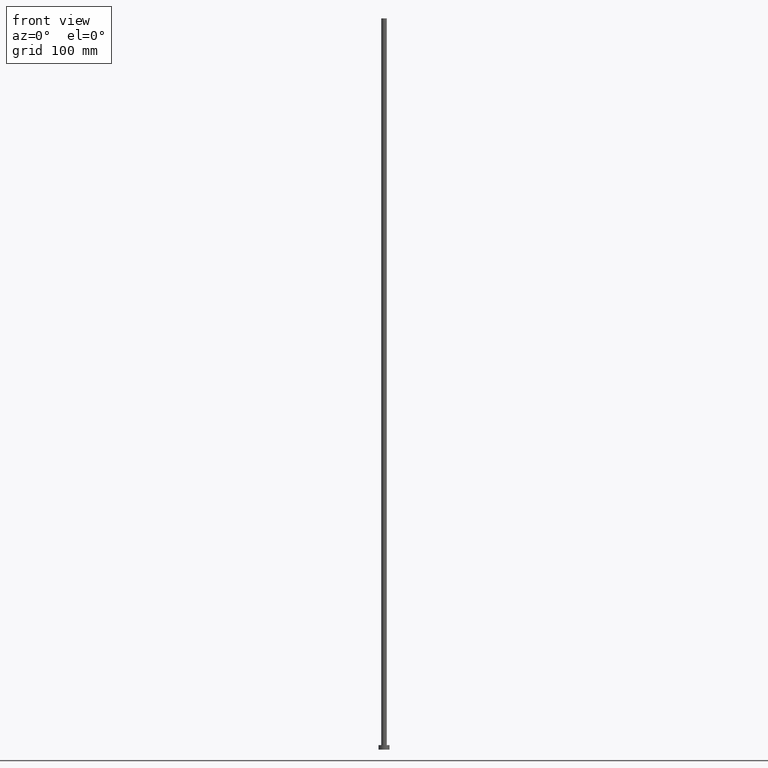
[diagram: clean part render]
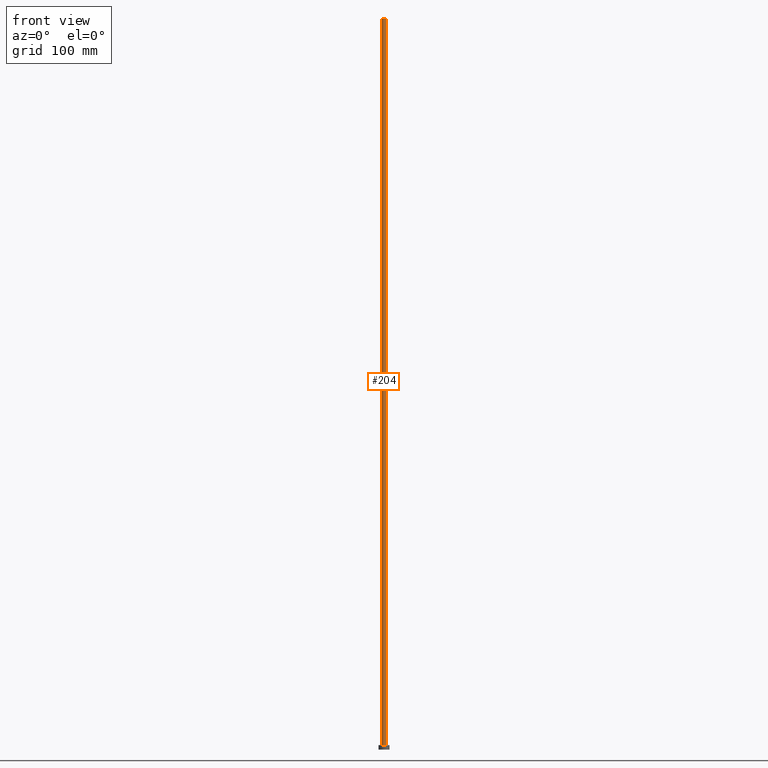
[diagram: same view with one face highlighted and labeled with its STEP entity id]
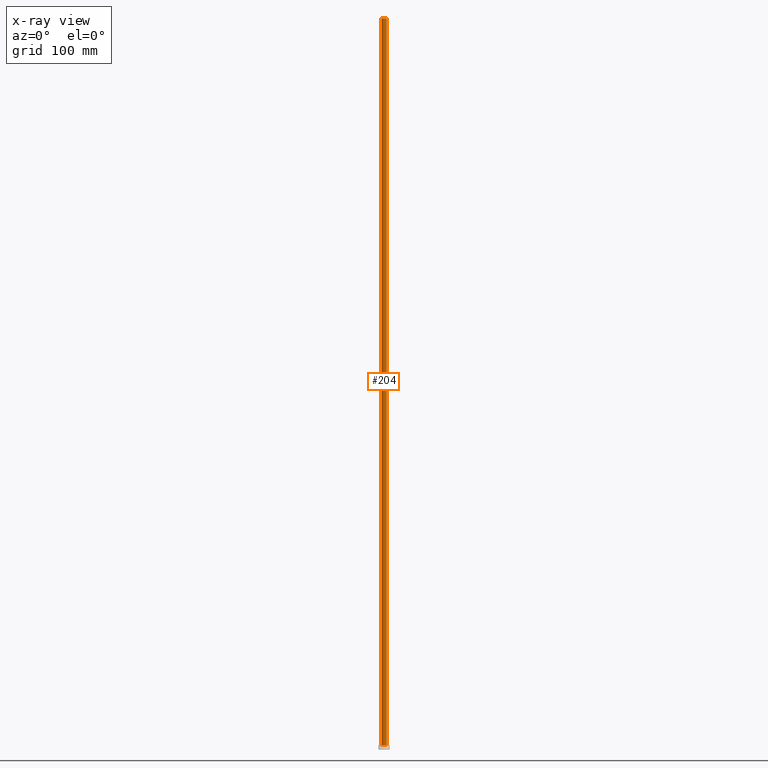
[diagram: x-ray of the same camera — body ghosted, the highlighted face saturated]
A machine part, front view. The second image highlights one B-rep face of the part: STEP entity #204.
The next image is the same camera in x-ray: the body ghosted, the highlighted face saturated — about 0% of this face is hidden behind the body in this view.
In plain terms, the highlighted cylindrical surface (edge-blend (fillet) strip) has radius 3 mm, axis along (-0, -0, -1).
Its self-contained STEP definition (entity closure, byte-faithful):
#2 = DIRECTION ( 'NONE',  ( 0.000000000000000000, 0.000000000000000000, 1.000000000000000000 ) ) ;
#3 = VERTEX_POINT ( 'NONE', #206 ) ;
#15 = CIRCLE ( 'NONE', #105, 3.000000000000000444 ) ;
#19 = CIRCLE ( 'NONE', #154, 3.000000000000000444 ) ;
#21 = CARTESIAN_POINT ( 'NONE',  ( 0.000000000000000000, 0.000000000000000000, 5.000000000000000000 ) ) ;
#22 = CARTESIAN_POINT ( 'NONE',  ( -3.000000000000000444, 0.000000000000000000, 800.0000000000000000 ) ) ;
#25 = CARTESIAN_POINT ( 'NONE',  ( 3.000000000000000444, 3.673940397442060361E-16, 800.0000000000000000 ) ) ;
#27 = VERTEX_POINT ( 'NONE', #80 ) ;
#29 = DIRECTION ( 'NONE',  ( 1.000000000000000000, 0.000000000000000000, 0.000000000000000000 ) ) ;
#40 = EDGE_CURVE ( 'NONE', #3, #123, #184, .T. ) ;
#53 = DIRECTION ( 'NONE',  ( -0.000000000000000000, -0.000000000000000000, -1.000000000000000000 ) ) ;
#55 = EDGE_CURVE ( 'NONE', #222, #27, #59, .T. ) ;
#59 = LINE ( 'NONE', #22, #129 ) ;
#64 = DIRECTION ( 'NONE',  ( 0.000000000000000000, 0.000000000000000000, 1.000000000000000000 ) ) ;
#65 = CARTESIAN_POINT ( 'NONE',  ( 0.000000000000000000, 0.000000000000000000, 800.0000000000000000 ) ) ;
#80 = CARTESIAN_POINT ( 'NONE',  ( -3.000000000000000444, 0.000000000000000000, 5.000000000000000000 ) ) ;
#90 = CYLINDRICAL_SURFACE ( 'NONE', #202, 3.000000000000000444 ) ;
#93 = ORIENTED_EDGE ( 'NONE', *, *, #40, .F. ) ;
#99 = EDGE_LOOP ( 'NONE', ( #93, #155, #255, #226 ) ) ;
#105 = AXIS2_PLACEMENT_3D ( 'NONE', #65, #64, #29 ) ;
#109 = CARTESIAN_POINT ( 'NONE',  ( -3.000000000000000444, 0.000000000000000000, 800.0000000000000000 ) ) ;
#119 = FACE_OUTER_BOUND ( 'NONE', #99, .T. ) ;
#123 = VERTEX_POINT ( 'NONE', #126 ) ;
#124 = DIRECTION ( 'NONE',  ( -0.000000000000000000, -0.000000000000000000, -1.000000000000000000 ) ) ;
#126 = CARTESIAN_POINT ( 'NONE',  ( 3.000000000000000444, 3.673940397442060361E-16, 5.000000000000000000 ) ) ;
#129 = VECTOR ( 'NONE', #140, 1000.000000000000000 ) ;
#140 = DIRECTION ( 'NONE',  ( -0.000000000000000000, -0.000000000000000000, -1.000000000000000000 ) ) ;
#148 = EDGE_CURVE ( 'NONE', #222, #3, #15, .T. ) ;
#152 = DIRECTION ( 'NONE',  ( -1.000000000000000000, 0.000000000000000000, 0.000000000000000000 ) ) ;
#154 = AXIS2_PLACEMENT_3D ( 'NONE', #21, #2, #197 ) ;
#155 = ORIENTED_EDGE ( 'NONE', *, *, #148, .F. ) ;
#156 = CARTESIAN_POINT ( 'NONE',  ( 0.000000000000000000, 0.000000000000000000, 800.0000000000000000 ) ) ;
#176 = VECTOR ( 'NONE', #124, 1000.000000000000000 ) ;
#184 = LINE ( 'NONE', #25, #176 ) ;
#197 = DIRECTION ( 'NONE',  ( 1.000000000000000000, 0.000000000000000000, 0.000000000000000000 ) ) ;
#202 = AXIS2_PLACEMENT_3D ( 'NONE', #156, #53, #152 ) ;
#204 = ADVANCED_FACE ( 'NONE', ( #119 ), #90, .T. ) ;
#206 = CARTESIAN_POINT ( 'NONE',  ( 3.000000000000000444, 3.673940397442060361E-16, 800.0000000000000000 ) ) ;
#212 = EDGE_CURVE ( 'NONE', #27, #123, #19, .T. ) ;
#222 = VERTEX_POINT ( 'NONE', #109 ) ;
#226 = ORIENTED_EDGE ( 'NONE', *, *, #212, .T. ) ;
#255 = ORIENTED_EDGE ( 'NONE', *, *, #55, .T. ) ;